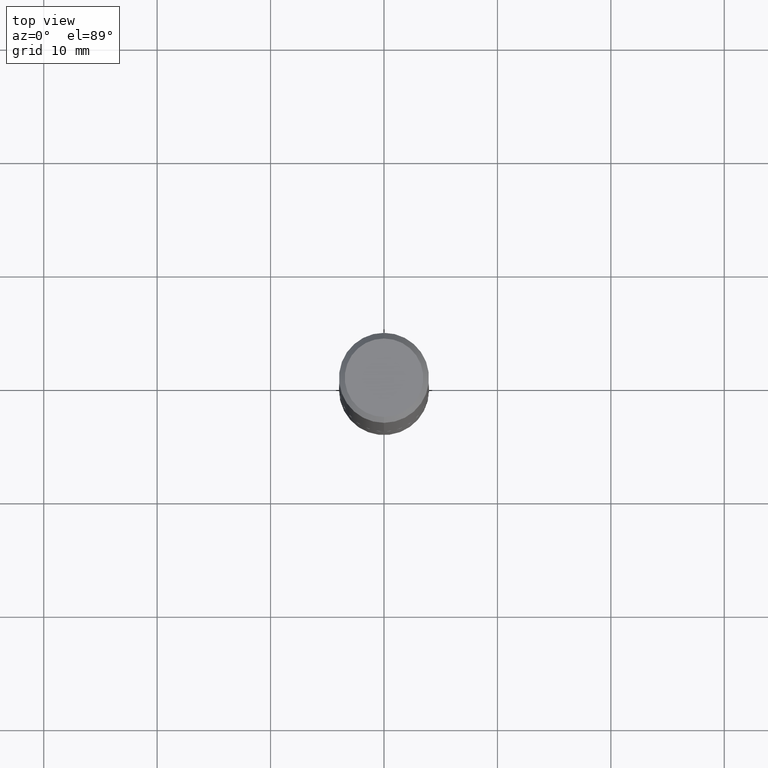
[diagram: clean part render]
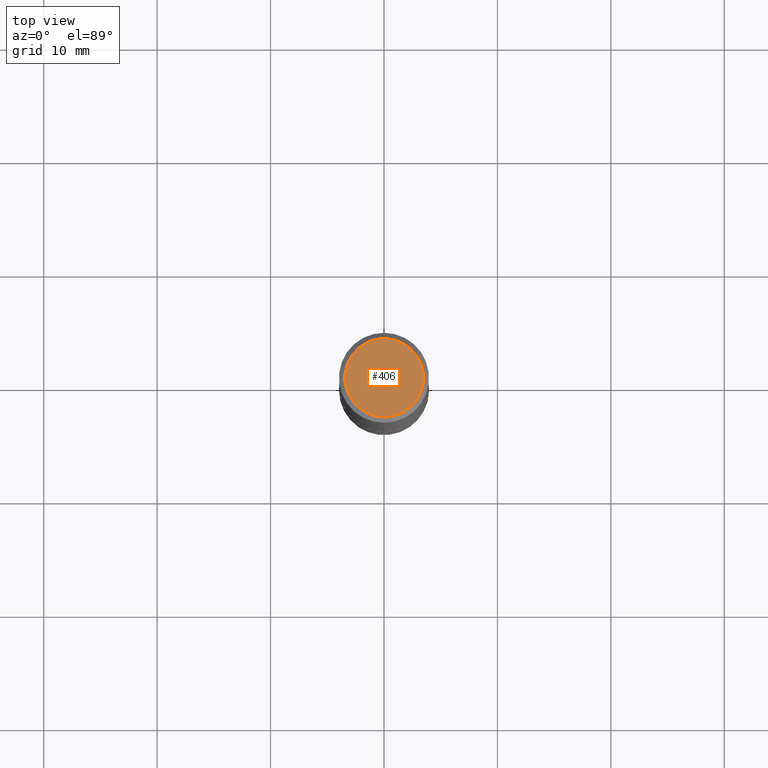
[diagram: same view with one face highlighted and labeled with its STEP entity id]
A machine part, top view. The second image highlights one B-rep face of the part: STEP entity #406.
In plain terms, the highlighted planar face has unit normal (0, -0, -1).
Its self-contained STEP definition (entity closure, byte-faithful):
#38 = CARTESIAN_POINT ( 'NONE',  ( 9.514286648347539576E-16, 0.1362500000000000100, -4.545548560773172373E-16 ) ) ;
#79 = VERTEX_POINT ( 'NONE', #91 ) ;
#90 = PLANE ( 'NONE',  #367 ) ;
#91 = CARTESIAN_POINT ( 'NONE',  ( 1.021258291611616861E-15, 0.1362500000000000100, -4.330292075163745362E-16 ) ) ;
#127 = DIRECTION ( 'NONE',  ( -6.982962677686266711E-15, -1.000000000000000000, 3.494168841381722958E-15 ) ) ;
#151 = VERTEX_POINT ( 'NONE', #321 ) ;
#154 = ORIENTED_EDGE ( 'NONE', *, *, #311, .T. ) ;
#157 = DIRECTION ( 'NONE',  ( -6.982962677686266711E-15, -1.000000000000000000, 3.494168841381722958E-15 ) ) ;
#167 = EDGE_CURVE ( 'NONE', #79, #151, #366, .T. ) ;
#175 = EDGE_LOOP ( 'NONE', ( #323, #154 ) ) ;
#186 = AXIS2_PLACEMENT_3D ( 'NONE', #194, #292, #127 ) ;
#188 = FACE_OUTER_BOUND ( 'NONE', #175, .T. ) ;
#194 = CARTESIAN_POINT ( 'NONE',  ( -1.051998109707860162E-45, 1.504285009843582967E-31, 4.305129712188530359E-17 ) ) ;
#208 = DIRECTION ( 'NONE',  ( 6.982962677686265922E-15, 1.000000000000000000, -3.494168841381722958E-15 ) ) ;
#226 = CARTESIAN_POINT ( 'NONE',  ( -1.051998109707860162E-45, 1.504285009843582967E-31, 4.305129712188530359E-17 ) ) ;
#245 = AXIS2_PLACEMENT_3D ( 'NONE', #226, #382, #157 ) ;
#269 = DIRECTION ( 'NONE',  ( 2.443592133192828865E-29, -3.494168841381722958E-15, -1.000000000000000000 ) ) ;
#292 = DIRECTION ( 'NONE',  ( -2.443592133192829145E-29, 3.494168841381722958E-15, 1.000000000000000000 ) ) ;
#311 = EDGE_CURVE ( 'NONE', #151, #79, #317, .T. ) ;
#317 = CIRCLE ( 'NONE', #186, 0.1362500000000000100 ) ;
#321 = CARTESIAN_POINT ( 'NONE',  ( -1.003347832174086278E-15, -0.1362500000000000100, 5.191318017601450941E-16 ) ) ;
#323 = ORIENTED_EDGE ( 'NONE', *, *, #167, .T. ) ;
#366 = CIRCLE ( 'NONE', #245, 0.1362500000000000100 ) ;
#367 = AXIS2_PLACEMENT_3D ( 'NONE', #38, #269, #208 ) ;
#382 = DIRECTION ( 'NONE',  ( -2.443592133192829145E-29, 3.494168841381722958E-15, 1.000000000000000000 ) ) ;
#406 = ADVANCED_FACE ( 'NONE', ( #188 ), #90, .F. ) ;